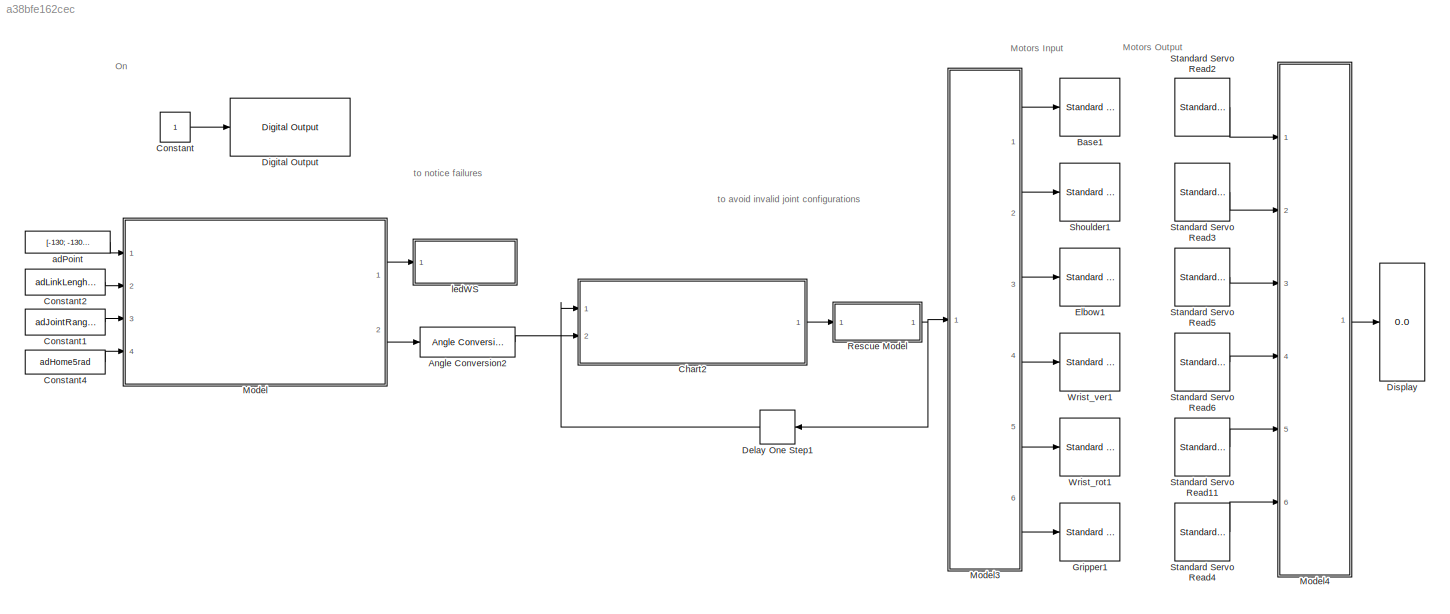
MODEL slx_a38bfe162cec
KIND model
CONFIG AbsTol = auto
CONFIG EnableMultiTasking = on
CONFIG FixedStep = auto
CONFIG MaxStep = auto
CONFIG MinStep = auto
CONFIG RelTol = 1e-3
CONFIG SampleTimeConstraint = Unconstrained
CONFIG SolverName = FixedStepAuto
CONFIG StartTime = 0.0
CONFIG StopTime = inf
BLOCK [Reference] Angle Conversion2  REF=aerolibconvert2/Angle Conversion
  Ports = [1, 1]
  SourceBlock = aerolibconvert2/Angle Conversion
  SourceProductBaseCode = AE
  SourceType = Angle Conversion
BLOCK [Reference] Base1  REF=arduinolib/Standard Servo Write
  Ports = [1]
  SourceBlock = arduinolib/Standard Servo Write
  SourceProductBaseCode = ARDUINO
  SourceType = Arduino Standard Servo Write
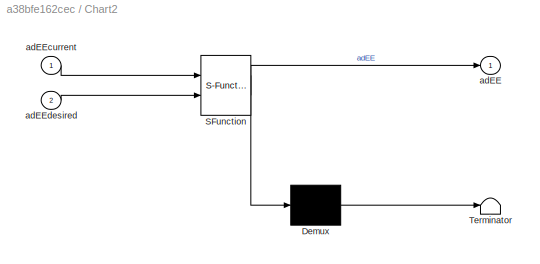
BLOCK [SubSystem] Chart2
  ErrorFcn = Stateflow.Translate.translate
  PermitHierarchicalResolution = ExplicitOnly
  Ports = [2, 1]
  RequestExecContextInheritance = off
  SFBlockType = Chart
  SystemSampleTime = 0.02
  TreatAsAtomicUnit = on
BLOCK [Demux] Chart2/ Demux 
  Outputs = 1
  Ports = [1, 1]
BLOCK [S-Function] Chart2/ SFunction 
  EnableBusSupport = on
  FunctionName = sf_sfun
  PortCounts = [2 2]
  Ports = [2, 2]
  SFcnIsStateOwnerBlock = off
  SFunctionDeploymentMode = off
  Tag = Stateflow S-Function 2
BLOCK [Terminator] Chart2/ Terminator 
BLOCK [Outport] Chart2/adEE
BLOCK [Inport] Chart2/adEEcurrent
BLOCK [Inport] Chart2/adEEdesired
  Port = 2
BLOCK [Constant] Constant
BLOCK [Constant] Constant1
  Value = adJointRanges
BLOCK [Constant] Constant2
  Value = adLinkLenghts
BLOCK [Constant] Constant4
  Value = adHome5rad
BLOCK [Delay] Delay One Step1
  DelayLength = 1
  InitialCondition = adHome6deg
  InputPortMap = u0
  NameLocation = top
  Ports = [1, 1]
BLOCK [Reference] Digital Output  REF=arduinolib/Digital Output
  Ports = [1]
  SourceBlock = arduinolib/Digital Output
  SourceProductBaseCode = ARDUINO
  SourceType = Arduino Digital Output
BLOCK [Display] Display
  Decimation = 1
  Ports = [1]
BLOCK [Reference] Elbow1  REF=arduinolib/Standard Servo Write
  Ports = [1]
  SourceBlock = arduinolib/Standard Servo Write
  SourceProductBaseCode = ARDUINO
  SourceType = Arduino Standard Servo Write
BLOCK [Reference] Gripper1  REF=arduinolib/Standard Servo Write
  Ports = [1]
  SourceBlock = arduinolib/Standard Servo Write
  SourceProductBaseCode = ARDUINO
  SourceType = Arduino Standard Servo Write
BLOCK [ModelReference] Model
  ModelNameDialog = mIkinBlock.slx
  ModelReferenceVersion = 1.87
  Ports = [4, 2]
BLOCK [ModelReference] Model3
  ModelNameDialog = mWriteMask.slx
  ModelReferenceVersion = 1.6
  Ports = [1, 6]
BLOCK [ModelReference] Model4
  ModelNameDialog = mReadMask.slx
  ModelReferenceVersion = 1.7
  Ports = [6, 1]
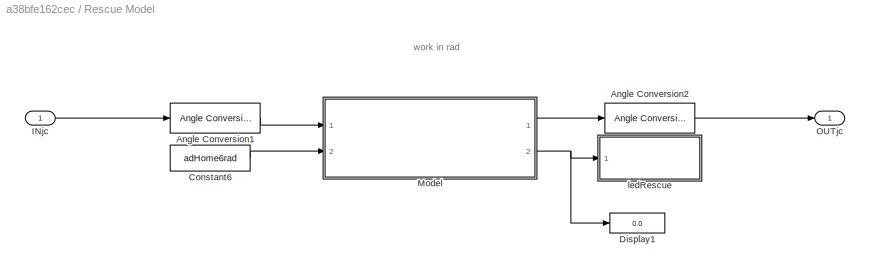
BLOCK [SubSystem] Rescue Model
  Ports = [1, 1]
  RequestExecContextInheritance = off
BLOCK [Reference] Rescue Model/Angle Conversion1  REF=aerolibconvert2/Angle Conversion
  Ports = [1, 1]
  SourceBlock = aerolibconvert2/Angle Conversion
  SourceProductBaseCode = AE
  SourceType = Angle Conversion
BLOCK [Reference] Rescue Model/Angle Conversion2  REF=aerolibconvert2/Angle Conversion
  Ports = [1, 1]
  SourceBlock = aerolibconvert2/Angle Conversion
  SourceProductBaseCode = AE
  SourceType = Angle Conversion
BLOCK [Constant] Rescue Model/Constant6
  Value = adHome6rad
BLOCK [Display] Rescue Model/Display1
  Decimation = 1
  Ports = [1]
BLOCK [Inport] Rescue Model/INjc
BLOCK [ModelReference] Rescue Model/Model
  ModelNameDialog = mRescue.slx
  ModelReferenceVersion = 1.31
  Ports = [2, 2]
BLOCK [Outport] Rescue Model/OUTjc
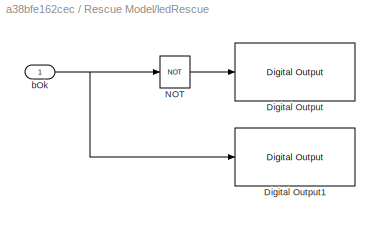
BLOCK [SubSystem] Rescue Model/ledRescue
  Ports = [1]
  RequestExecContextInheritance = off
  TreatAsAtomicUnit = on
BLOCK [Reference] Rescue Model/ledRescue/Digital Output  REF=arduinolib/Digital Output
  Ports = [1]
  SourceBlock = arduinolib/Digital Output
  SourceProductBaseCode = ARDUINO
  SourceType = Arduino Digital Output
BLOCK [Reference] Rescue Model/ledRescue/Digital Output1  REF=arduinolib/Digital Output
  Ports = [1]
  SourceBlock = arduinolib/Digital Output
  SourceProductBaseCode = ARDUINO
  SourceType = Arduino Digital Output
BLOCK [Logic] Rescue Model/ledRescue/NOT
  AllPortsSameDT = off
  IconShape = distinctive
  Operator = NOT
  OutDataTypeStr = boolean
  Ports = [1, 1]
BLOCK [Inport] Rescue Model/ledRescue/bOk
BLOCK [Reference] Shoulder1  REF=arduinolib/Standard Servo Write
  Ports = [1]
  SourceBlock = arduinolib/Standard Servo Write
  SourceProductBaseCode = ARDUINO
  SourceType = Arduino Standard Servo Write
BLOCK [Reference] Standard Servo Read11  REF=arduinolib/Standard Servo Read
  Ports = [0, 1]
  SourceBlock = arduinolib/Standard Servo Read
  SourceProductBaseCode = ARDUINO
  SourceType = Arduino Standard Servo Read
BLOCK [Reference] Standard Servo Read2  REF=arduinolib/Standard Servo Read
  Ports = [0, 1]
  SourceBlock = arduinolib/Standard Servo Read
  SourceProductBaseCode = ARDUINO
  SourceType = Arduino Standard Servo Read
BLOCK [Reference] Standard Servo Read3  REF=arduinolib/Standard Servo Read
  Ports = [0, 1]
  SourceBlock = arduinolib/Standard Servo Read
  SourceProductBaseCode = ARDUINO
  SourceType = Arduino Standard Servo Read
BLOCK [Reference] Standard Servo Read4  REF=arduinolib/Standard Servo Read
  Ports = [0, 1]
  SourceBlock = arduinolib/Standard Servo Read
  SourceProductBaseCode = ARDUINO
  SourceType = Arduino Standard Servo Read
BLOCK [Reference] Standard Servo Read5  REF=arduinolib/Standard Servo Read
  Ports = [0, 1]
  SourceBlock = arduinolib/Standard Servo Read
  SourceProductBaseCode = ARDUINO
  SourceType = Arduino Standard Servo Read
BLOCK [Reference] Standard Servo Read6  REF=arduinolib/Standard Servo Read
  Ports = [0, 1]
  SourceBlock = arduinolib/Standard Servo Read
  SourceProductBaseCode = ARDUINO
  SourceType = Arduino Standard Servo Read
BLOCK [Reference] Wrist_rot1  REF=arduinolib/Standard Servo Write
  Ports = [1]
  SourceBlock = arduinolib/Standard Servo Write
  SourceProductBaseCode = ARDUINO
  SourceType = Arduino Standard Servo Write
BLOCK [Reference] Wrist_ver1  REF=arduinolib/Standard Servo Write
  Ports = [1]
  SourceBlock = arduinolib/Standard Servo Write
  SourceProductBaseCode = ARDUINO
  SourceType = Arduino Standard Servo Write
BLOCK [Constant] adPoint
  Value = [-130; -130; 10]
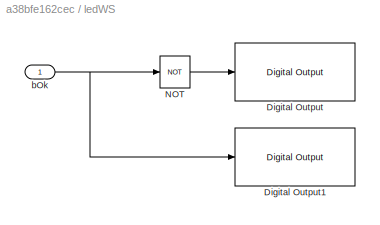
BLOCK [SubSystem] ledWS
  Ports = [1]
  RequestExecContextInheritance = off
  TreatAsAtomicUnit = on
BLOCK [Reference] ledWS/Digital Output  REF=arduinolib/Digital Output
  Ports = [1]
  SourceBlock = arduinolib/Digital Output
  SourceProductBaseCode = ARDUINO
  SourceType = Arduino Digital Output
BLOCK [Reference] ledWS/Digital Output1  REF=arduinolib/Digital Output
  Ports = [1]
  SourceBlock = arduinolib/Digital Output
  SourceProductBaseCode = ARDUINO
  SourceType = Arduino Digital Output
BLOCK [Logic] ledWS/NOT
  AllPortsSameDT = off
  IconShape = distinctive
  Operator = NOT
  OutDataTypeStr = boolean
  Ports = [1, 1]
BLOCK [Inport] ledWS/bOk
ANNOTATION (root): to avoid invalid joint configurations
ANNOTATION (root): to notice failures
ANNOTATION (root): Motors Input
ANNOTATION (root): Motors Output
ANNOTATION (root): On
ANNOTATION Rescue Model: work in rad
LINE Angle Conversion2:1 -> Chart2:2
LINE Chart2:1 -> Rescue Model:1
LINE Constant1:1 -> Model:3
LINE Constant2:1 -> Model:2
LINE Constant4:1 -> Model:4
LINE Constant:1 -> Digital Output:1
LINE Delay One Step1:1 -> Chart2:1
LINE Model3:1 -> Base1:1
LINE Model3:2 -> Shoulder1:1
LINE Model3:3 -> Elbow1:1
LINE Model3:4 -> Wrist_ver1:1
LINE Model3:5 -> Wrist_rot1:1
LINE Model3:6 -> Gripper1:1
LINE Model4:1 -> Display:1
LINE Model:1 -> ledWS:1
LINE Model:2 -> Angle Conversion2:1
LINE Rescue Model/Angle Conversion1:1 -> Rescue Model/Model:1
LINE Rescue Model/Angle Conversion2:1 -> Rescue Model/OUTjc:1
LINE Rescue Model/Constant6:1 -> Rescue Model/Model:2
LINE Rescue Model/INjc:1 -> Rescue Model/Angle Conversion1:1
LINE Rescue Model/Model:1 -> Rescue Model/Angle Conversion2:1
NET Rescue Model/Model:2 -> Rescue Model/Display1:1, Rescue Model/ledRescue:1
LINE Rescue Model/ledRescue/NOT:1 -> Rescue Model/ledRescue/Digital Output:1
NET Rescue Model/ledRescue/bOk:1 -> Rescue Model/ledRescue/Digital Output1:1, Rescue Model/ledRescue/NOT:1
NET Rescue Model:1 -> Delay One Step1:1, Model3:1
LINE Standard Servo Read11:1 -> Model4:5
LINE Standard Servo Read2:1 -> Model4:1
LINE Standard Servo Read3:1 -> Model4:2
LINE Standard Servo Read4:1 -> Model4:6
LINE Standard Servo Read5:1 -> Model4:3
LINE Standard Servo Read6:1 -> Model4:4
LINE adPoint:1 -> Model:1
LINE ledWS/NOT:1 -> ledWS/Digital Output:1
NET ledWS/bOk:1 -> ledWS/Digital Output1:1, ledWS/NOT:1
note: NET lines group one-source signal fan-out (src -> all destinations, sorted); 1:1 wires keep LINE
CHART Chart2 states=2 transitions=1
  STATE_LABEL 'First\nduring:\n  adEE = [\n      nextStep(adEEcurrent(1), adEEdesired(1));\n      nextStep(adEEcurrent(2), adEEdesired(2));\n      nextStep(adEEcurrent(3), adEEdesired(3));\n      nextStep(adEEcurrent(4), adEEdesired(4));\n      nextStep(adEEcurrent(5), adEEdesired(5));\n      nextStep(adEEcurrent(6), adEEdesired(6)) ];'
  STATE_LABEL 'v = nextStep(current, desired)'
  STATE_LABEL 'SCRIPT:\nfunction v = nextStep(current, desired)\nif (current < desired)\n    current = current + 1;\nend\n\nif (current > desired)\n    current = current - 1;\nend\n\nv = current;\nend\n \n'
  STATE_LABEL 'v = nextStep(current, desired)'
  STATE_LABEL 'SCRIPT:\nfunction v = nextStep(current, desired)\nif (current < desired)\n    current = current + 1;\nend\n\nif (current > desired)\n    current = current - 1;\nend\n\nv = current;\nend\n \n'
CHART  states=0 transitions=0
